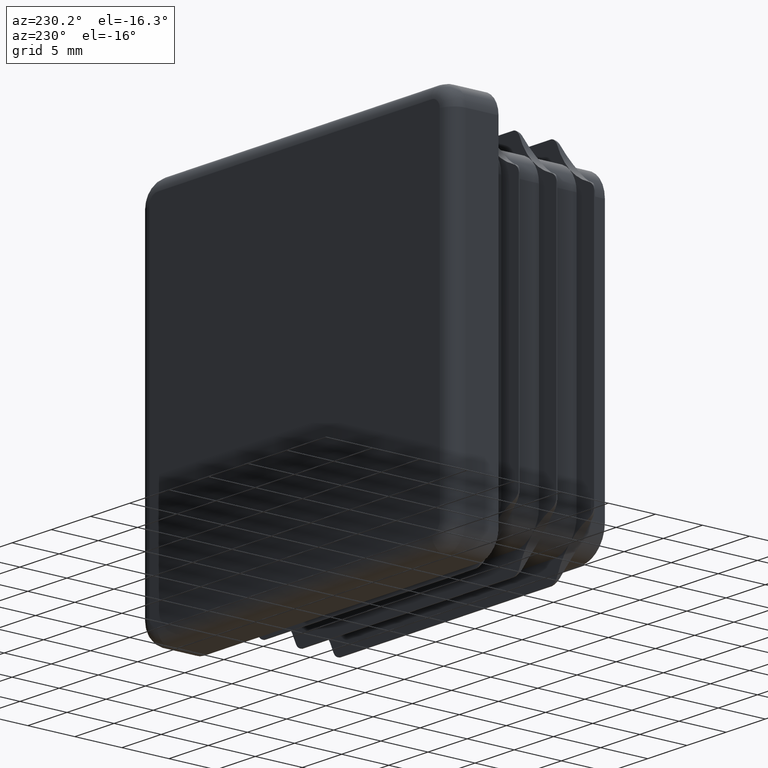
[diagram: clean part render]
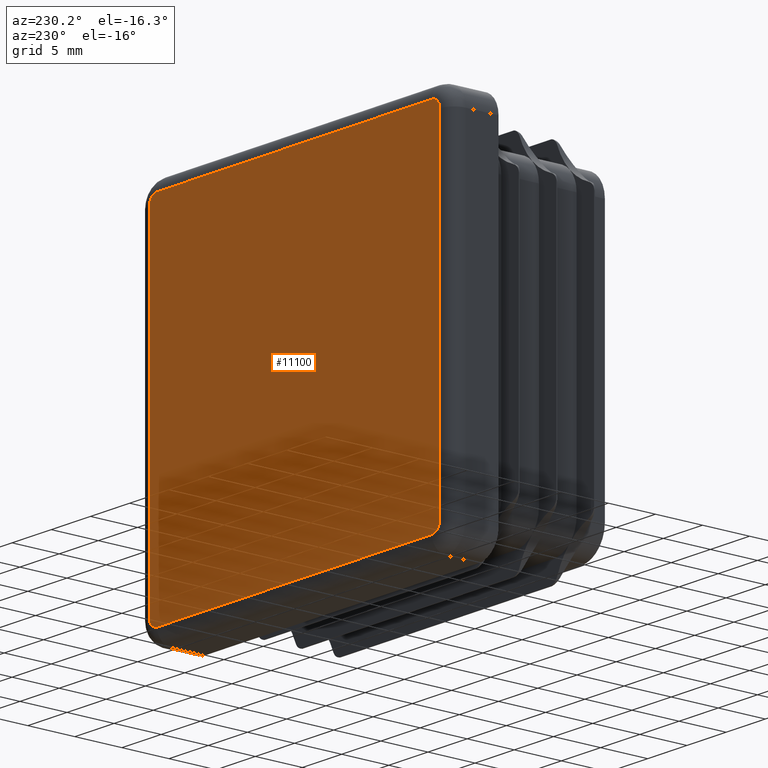
[diagram: same view with one face highlighted and labeled with its STEP entity id]
A machine part, auxiliary view. The second image highlights one B-rep face of the part: STEP entity #11100.
In plain terms, the highlighted planar face has unit normal (0, 1, 0).
Its self-contained STEP definition (entity closure, byte-faithful):
#122 = VERTEX_POINT ( 'NONE', #15623 ) ;
#184 = CIRCLE ( 'NONE', #13676, 1.000000000000000888 ) ;
#931 = AXIS2_PLACEMENT_3D ( 'NONE', #14406, #17590, #19163 ) ;
#1250 = EDGE_CURVE ( 'NONE', #2071, #15096, #17889, .T. ) ;
#2002 = CIRCLE ( 'NONE', #9739, 1.000000000000000888 ) ;
#2071 = VERTEX_POINT ( 'NONE', #13269 ) ;
#2637 = VERTEX_POINT ( 'NONE', #17877 ) ;
#2761 = VERTEX_POINT ( 'NONE', #16545 ) ;
#3276 = EDGE_CURVE ( 'NONE', #2761, #2637, #17391, .T. ) ;
#3398 = PLANE ( 'NONE',  #931 ) ;
#3563 = CARTESIAN_POINT ( 'NONE',  ( -17.50000000000000000, 5.000000000000000000, -18.50000000000000000 ) ) ;
#3703 = ORIENTED_EDGE ( 'NONE', *, *, #6676, .T. ) ;
#3837 = VECTOR ( 'NONE', #17750, 1000.000000000000000 ) ;
#4812 = ORIENTED_EDGE ( 'NONE', *, *, #1250, .T. ) ;
#4898 = VERTEX_POINT ( 'NONE', #10715 ) ;
#4955 = DIRECTION ( 'NONE',  ( 1.000000000000000000, -0.000000000000000000, 0.000000000000000000 ) ) ;
#5483 = VECTOR ( 'NONE', #7696, 1000.000000000000000 ) ;
#5661 = CARTESIAN_POINT ( 'NONE',  ( -17.50000000000000000, 5.000000000000000000, -17.50000000000000000 ) ) ;
#6526 = LINE ( 'NONE', #14453, #7777 ) ;
#6676 = EDGE_CURVE ( 'NONE', #18322, #2071, #184, .T. ) ;
#7255 = DIRECTION ( 'NONE',  ( 0.000000000000000000, 1.000000000000000000, 0.000000000000000000 ) ) ;
#7321 = DIRECTION ( 'NONE',  ( 0.000000000000000000, 0.000000000000000000, 1.000000000000000000 ) ) ;
#7696 = DIRECTION ( 'NONE',  ( 1.734723475976807094E-16, -0.000000000000000000, 1.000000000000000000 ) ) ;
#7777 = VECTOR ( 'NONE', #11447, 1000.000000000000000 ) ;
#8717 = CARTESIAN_POINT ( 'NONE',  ( -18.49999999999999289, 5.000000000000000000, 17.50000000000000000 ) ) ;
#8731 = CARTESIAN_POINT ( 'NONE',  ( -17.49999999999999645, 5.000000000000000000, 17.50000000000000000 ) ) ;
#8931 = AXIS2_PLACEMENT_3D ( 'NONE', #5661, #16671, #19910 ) ;
#9241 = ORIENTED_EDGE ( 'NONE', *, *, #3276, .T. ) ;
#9493 = ORIENTED_EDGE ( 'NONE', *, *, #17513, .T. ) ;
#9716 = LINE ( 'NONE', #18448, #5483 ) ;
#9739 = AXIS2_PLACEMENT_3D ( 'NONE', #8731, #10318, #16748 ) ;
#10120 = EDGE_CURVE ( 'NONE', #4898, #18322, #6526, .T. ) ;
#10318 = DIRECTION ( 'NONE',  ( 0.000000000000000000, 1.000000000000000000, 0.000000000000000000 ) ) ;
#10715 = CARTESIAN_POINT ( 'NONE',  ( 18.50000000000000711, 5.000000000000000000, 17.50000000000000355 ) ) ;
#10826 = ORIENTED_EDGE ( 'NONE', *, *, #19620, .T. ) ;
#11078 = CIRCLE ( 'NONE', #8931, 1.000000000000000888 ) ;
#11100 = ADVANCED_FACE ( 'NONE', ( #18855 ), #3398, .T. ) ;
#11279 = ORIENTED_EDGE ( 'NONE', *, *, #13141, .T. ) ;
#11447 = DIRECTION ( 'NONE',  ( -1.734723475976807094E-16, 0.000000000000000000, -1.000000000000000000 ) ) ;
#11874 = CARTESIAN_POINT ( 'NONE',  ( 17.50000000000000711, 5.000000000000000000, 17.50000000000000355 ) ) ;
#12474 = VECTOR ( 'NONE', #4955, 1000.000000000000000 ) ;
#12531 = CARTESIAN_POINT ( 'NONE',  ( 17.50000000000001066, 5.000000000000000000, 18.50000000000000000 ) ) ;
#12710 = DIRECTION ( 'NONE',  ( 0.000000000000000000, 0.000000000000000000, 1.000000000000000000 ) ) ;
#13141 = EDGE_CURVE ( 'NONE', #122, #15136, #9716, .T. ) ;
#13269 = CARTESIAN_POINT ( 'NONE',  ( 17.50000000000000355, 5.000000000000000000, -18.50000000000000355 ) ) ;
#13676 = AXIS2_PLACEMENT_3D ( 'NONE', #18788, #17334, #12710 ) ;
#14202 = ORIENTED_EDGE ( 'NONE', *, *, #19715, .T. ) ;
#14406 = CARTESIAN_POINT ( 'NONE',  ( 0.000000000000000000, 5.000000000000000000, 0.000000000000000000 ) ) ;
#14453 = CARTESIAN_POINT ( 'NONE',  ( 18.50000000000000000, 5.000000000000000000, -17.50000000000000000 ) ) ;
#14562 = CARTESIAN_POINT ( 'NONE',  ( 18.50000000000000000, 5.000000000000000000, -17.50000000000000000 ) ) ;
#14585 = CARTESIAN_POINT ( 'NONE',  ( -17.50000000000000000, 5.000000000000000000, -18.50000000000000000 ) ) ;
#14785 = ORIENTED_EDGE ( 'NONE', *, *, #10120, .T. ) ;
#15068 = CIRCLE ( 'NONE', #17098, 1.000000000000000888 ) ;
#15096 = VERTEX_POINT ( 'NONE', #3563 ) ;
#15136 = VERTEX_POINT ( 'NONE', #8717 ) ;
#15623 = CARTESIAN_POINT ( 'NONE',  ( -18.50000000000000355, 5.000000000000000000, -17.50000000000000000 ) ) ;
#16545 = CARTESIAN_POINT ( 'NONE',  ( -17.49999999999999645, 5.000000000000000000, 18.50000000000000355 ) ) ;
#16671 = DIRECTION ( 'NONE',  ( 0.000000000000000000, 1.000000000000000000, 0.000000000000000000 ) ) ;
#16748 = DIRECTION ( 'NONE',  ( 0.000000000000000000, 0.000000000000000000, 1.000000000000000000 ) ) ;
#17098 = AXIS2_PLACEMENT_3D ( 'NONE', #11874, #7255, #7321 ) ;
#17192 = EDGE_LOOP ( 'NONE', ( #9241, #10826, #14785, #3703, #4812, #9493, #11279, #14202 ) ) ;
#17334 = DIRECTION ( 'NONE',  ( 0.000000000000000000, 1.000000000000000000, 0.000000000000000000 ) ) ;
#17391 = LINE ( 'NONE', #12531, #12474 ) ;
#17513 = EDGE_CURVE ( 'NONE', #15096, #122, #11078, .T. ) ;
#17590 = DIRECTION ( 'NONE',  ( 0.000000000000000000, 1.000000000000000000, 0.000000000000000000 ) ) ;
#17750 = DIRECTION ( 'NONE',  ( -1.000000000000000000, 0.000000000000000000, 0.000000000000000000 ) ) ;
#17877 = CARTESIAN_POINT ( 'NONE',  ( 17.50000000000000711, 5.000000000000000000, 18.50000000000000000 ) ) ;
#17889 = LINE ( 'NONE', #14585, #3837 ) ;
#18322 = VERTEX_POINT ( 'NONE', #14562 ) ;
#18448 = CARTESIAN_POINT ( 'NONE',  ( -18.49999999999999289, 5.000000000000000000, 17.50000000000000355 ) ) ;
#18788 = CARTESIAN_POINT ( 'NONE',  ( 17.50000000000000355, 5.000000000000000000, -17.50000000000000000 ) ) ;
#18855 = FACE_OUTER_BOUND ( 'NONE', #17192, .T. ) ;
#19163 = DIRECTION ( 'NONE',  ( 0.000000000000000000, -0.000000000000000000, 1.000000000000000000 ) ) ;
#19620 = EDGE_CURVE ( 'NONE', #2637, #4898, #15068, .T. ) ;
#19715 = EDGE_CURVE ( 'NONE', #15136, #2761, #2002, .T. ) ;
#19910 = DIRECTION ( 'NONE',  ( 0.000000000000000000, 0.000000000000000000, 1.000000000000000000 ) ) ;